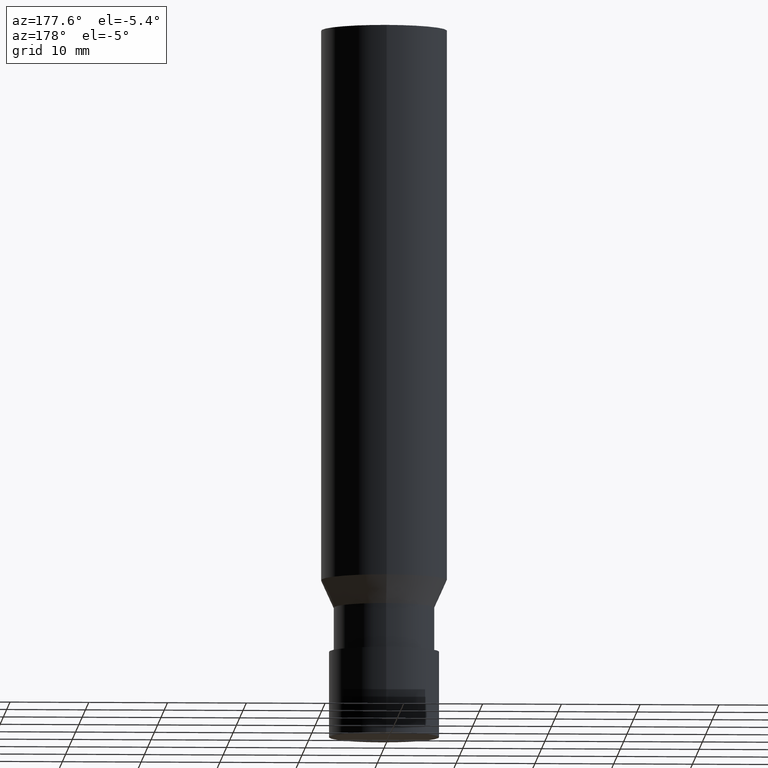
[diagram: clean part render]
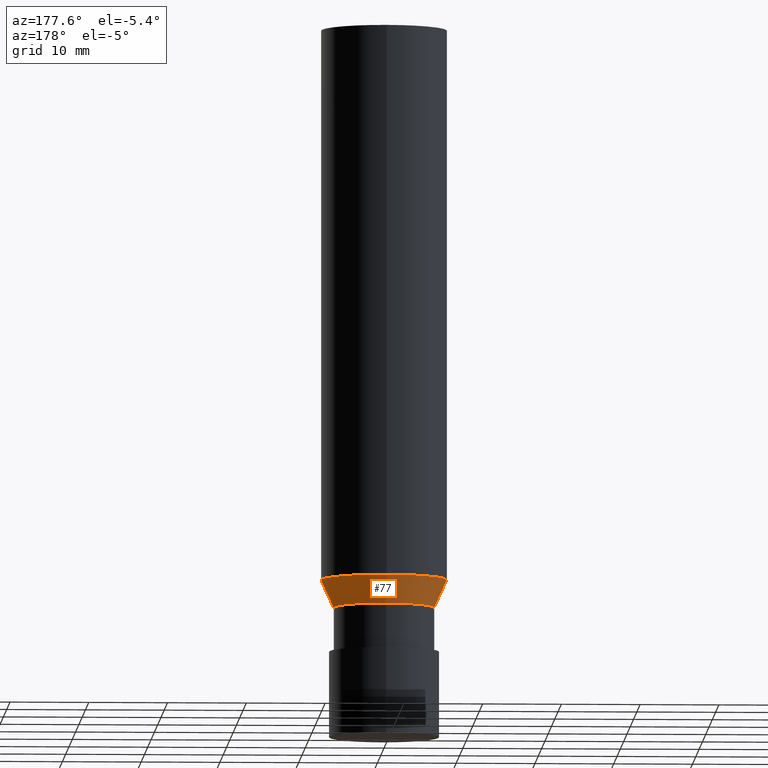
[diagram: same view with one face highlighted and labeled with its STEP entity id]
A machine part, auxiliary view. The second image highlights one B-rep face of the part: STEP entity #77.
In plain terms, the highlighted conical surface has half-angle 24.535 deg.
Its self-contained STEP definition (entity closure, byte-faithful):
#77=ADVANCED_FACE('',(#88,#89),#90,.T.);
#88=FACE_BOUND('',#107,.T.);
#89=FACE_BOUND('',#108,.T.);
#90=CONICAL_SURFACE('',#109,7.20000000000491,0.4282081304753);
#107=EDGE_LOOP('',(#130));
#108=EDGE_LOOP('',(#131));
#109=AXIS2_PLACEMENT_3D('',#132,#133,#134);
#130=ORIENTED_EDGE('',*,*,#156,.F.);
#131=ORIENTED_EDGE('',*,*,#155,.T.);
#132=CARTESIAN_POINT('',(-1.11732849959891E-015,-2.23465699919782E-015,18.2473591630964));
#133=DIRECTION('',(-6.12323399573677E-017,-1.22464679914735E-016,1.0));
#134=DIRECTION('',(-1.23259516440783E-032,1.0,1.22464679914735E-016));
#155=EDGE_CURVE('',#162,#162,#163,.T.);
#156=EDGE_CURVE('',#164,#164,#165,.T.);
#162=VERTEX_POINT('',#174);
#163=CIRCLE('',#175,8.0);
#164=VERTEX_POINT('',#176);
#165=CIRCLE('',#177,6.40000000000981);
#174=CARTESIAN_POINT('',(-1.22464679975968E-015,8.0,20.00000001));
#175=AXIS2_PLACEMENT_3D('',#187,#188,#189);
#176=CARTESIAN_POINT('',(-1.01001019943814E-015,6.40000000000981,16.4947183161929));
#177=AXIS2_PLACEMENT_3D('',#190,#191,#192);
#187=CARTESIAN_POINT('',(-1.22464679975968E-015,-2.44929359951935E-015,20.00000001));
#188=DIRECTION('',(6.12323399573677E-017,1.22464679914735E-016,-1.0));
#189=DIRECTION('',(-1.23259516440783E-032,1.0,1.22464679914735E-016));
#190=CARTESIAN_POINT('',(-1.01001019943814E-015,-2.02002039887628E-015,16.4947183161929));
#191=DIRECTION('',(6.12323399573677E-017,1.22464679914735E-016,-1.0));
#192=DIRECTION('',(-1.23259516440783E-032,1.0,1.22464679914735E-016));